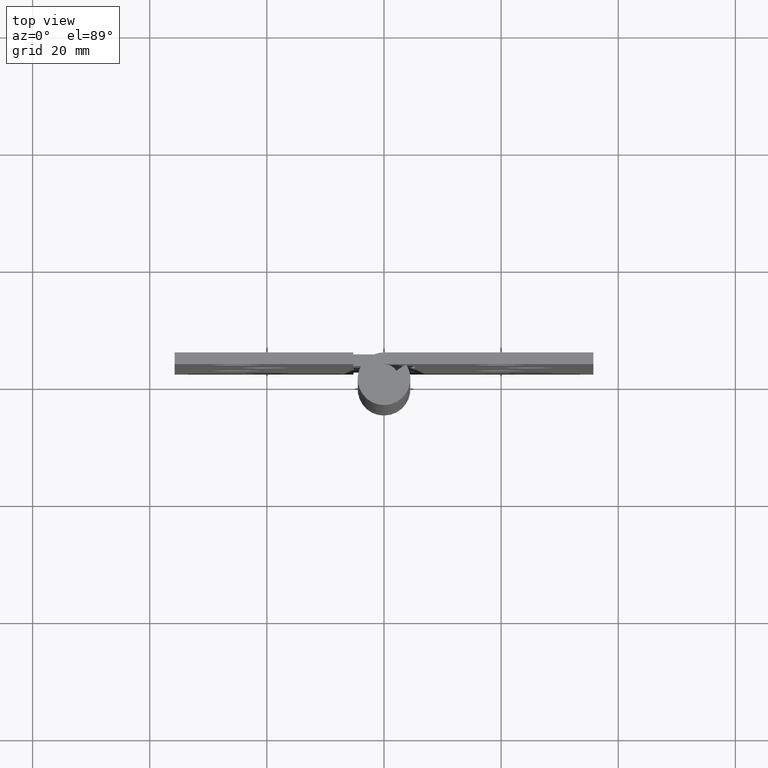
[diagram: clean part render]
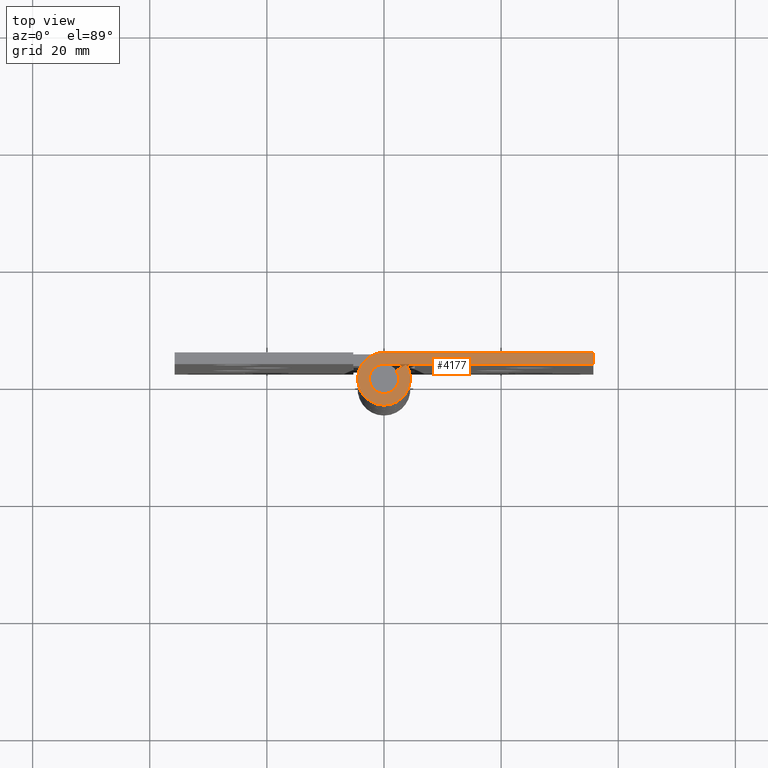
[diagram: same view with one face highlighted and labeled with its STEP entity id]
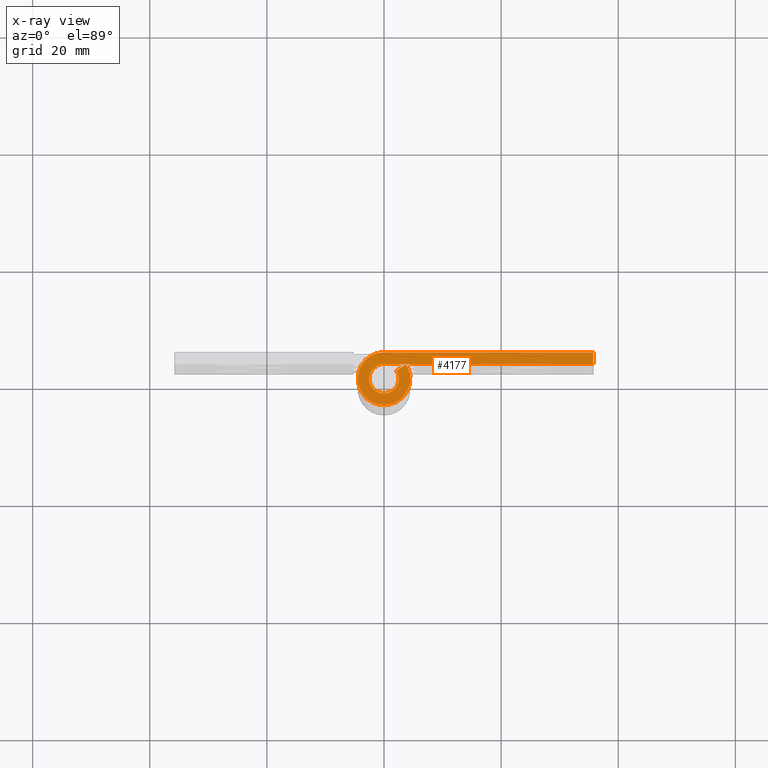
[diagram: x-ray of the same camera — body ghosted, the highlighted face saturated]
A machine part, top view. The second image highlights one B-rep face of the part: STEP entity #4177.
The next image is the same camera in x-ray: the body ghosted, the highlighted face saturated — about 0% of this face is hidden behind the body in this view.
In plain terms, the highlighted face is a freeform B-spline surface patch.
Its self-contained STEP definition (entity closure, byte-faithful):
#4100=CARTESIAN_POINT('',(-6.509910468555789,-4.947240005323052,102.000007999999990));
#4101=CARTESIAN_POINT('',(37.760452673167329,-4.947240005323052,102.000007999999990));
#4102=CARTESIAN_POINT('',(-6.509910468555789,4.949440329750106,102.000007999999990));
#4103=CARTESIAN_POINT('',(37.760452673167329,4.949440329750106,102.000007999999990));
#4104=B_SPLINE_SURFACE_WITH_KNOTS('',1,1,((#4100,#4102),(#4101,#4103)),.UNSPECIFIED.,.F.,.F.,.U.,(2,2),(2,2),(0.0,44.270363141723116),(0.0,9.896680335073157),.UNSPECIFIED.);
#4105=CARTESIAN_POINT('',(3.774586070021450,2.450000000000000,102.000007999999990));
#4106=VERTEX_POINT('',#4105);
#4107=CARTESIAN_POINT('',(0.0,4.500000000000000,102.000007999999990));
#4108=VERTEX_POINT('',#4107);
#4109=CARTESIAN_POINT('',(3.774586070021452,2.450000000000001,102.000007999999990));
#4110=CARTESIAN_POINT('',(5.680028716683057,-0.485615212781099,102.000007999999990));
#4111=CARTESIAN_POINT('',(3.303919729592088,-3.055178296010257,102.000007999999990));
#4112=CARTESIAN_POINT('',(0.927810742501120,-5.624741379239415,102.000007999999990));
#4113=CARTESIAN_POINT('',(-2.147673159491448,-3.954427897939223,102.000007999999990));
#4114=CARTESIAN_POINT('',(-5.223157061484022,-2.284114416639028,102.000007999999990));
#4115=CARTESIAN_POINT('',(-4.361474838900626,1.107942791680489,102.000007999999990));
#4116=CARTESIAN_POINT('',(-3.499792616317231,4.499999999999999,102.000007999999990));
#4117=CARTESIAN_POINT('',(0.0,4.500000000000000,102.000007999999990));
#4125=(BOUNDED_CURVE()B_SPLINE_CURVE(2,(#4109,#4110,#4111,#4112,#4113,#4114,#4115,#4116,#4117),.UNSPECIFIED.,.F.,.U.)B_SPLINE_CURVE_WITH_KNOTS((3,2,2,2,3),(0.0,0.250000000000000,0.500000000000000,0.750000000000000,1.0),.UNSPECIFIED.)CURVE()GEOMETRIC_REPRESENTATION_ITEM()RATIONAL_B_SPLINE_CURVE((1.0,0.789369846542903,1.0,0.789369846542903,1.0,0.789369846542903,1.0,0.789369846542903,1.0))REPRESENTATION_ITEM(''));
#4126=EDGE_CURVE('',#4106,#4108,#4125,.T.);
#4127=ORIENTED_EDGE('',*,*,#4126,.F.);
#4128=CARTESIAN_POINT('',(2.096992261123030,1.361111111111112,102.000007999999990));
#4129=VERTEX_POINT('',#4128);
#4130=CARTESIAN_POINT('',(2.096992261123030,1.361111111111112,102.000007999999990));
#4131=CARTESIAN_POINT('',(3.774586070021450,2.450000000000000,102.000007999999990));
#4132=QUASI_UNIFORM_CURVE('',1,(#4130,#4131),.UNSPECIFIED.,.F.,.U.);
#4133=EDGE_CURVE('',#4129,#4106,#4132,.T.);
#4134=ORIENTED_EDGE('',*,*,#4133,.F.);
#4135=CARTESIAN_POINT('',(0.0,2.500000000000000,102.000007999999990));
#4136=VERTEX_POINT('',#4135);
#4137=CARTESIAN_POINT('',(2.096992261123029,1.361111111111112,102.000007999999990));
#4138=CARTESIAN_POINT('',(3.155571509268364,-0.269786229322833,102.000007999999990));
#4139=CARTESIAN_POINT('',(1.835510960884494,-1.697321275561254,102.000007999999990));
#4140=CARTESIAN_POINT('',(0.515450412500622,-3.124856321799674,102.000007999999990));
#4141=CARTESIAN_POINT('',(-1.193151755273027,-2.196904387744013,102.000007999999990));
#4142=CARTESIAN_POINT('',(-2.901753923046679,-1.268952453688348,102.000007999999990));
#4143=CARTESIAN_POINT('',(-2.423041577167015,0.615523773155827,102.000007999999990));
#4144=CARTESIAN_POINT('',(-1.944329231287350,2.500000000000000,102.000007999999990));
#4145=CARTESIAN_POINT('',(0.0,2.500000000000000,102.000007999999990));
#4153=(BOUNDED_CURVE()B_SPLINE_CURVE(2,(#4137,#4138,#4139,#4140,#4141,#4142,#4143,#4144,#4145),.UNSPECIFIED.,.F.,.U.)B_SPLINE_CURVE_WITH_KNOTS((3,2,2,2,3),(0.0,0.250000000000000,0.500000000000000,0.750000000000000,1.0),.UNSPECIFIED.)CURVE()GEOMETRIC_REPRESENTATION_ITEM()RATIONAL_B_SPLINE_CURVE((1.0,0.789369846542903,1.0,0.789369846542903,1.0,0.789369846542903,1.0,0.789369846542903,1.0))REPRESENTATION_ITEM(''));
#4154=EDGE_CURVE('',#4129,#4136,#4153,.T.);
#4155=ORIENTED_EDGE('',*,*,#4154,.T.);
#4156=CARTESIAN_POINT('',(35.749991999999999,2.500000000000000,102.000007999999990));
#4157=VERTEX_POINT('',#4156);
#4158=CARTESIAN_POINT('',(35.749991999999999,2.500000000000000,102.000007999999990));
#4159=CARTESIAN_POINT('',(0.0,2.500000000000000,102.000007999999990));
#4160=QUASI_UNIFORM_CURVE('',1,(#4158,#4159),.UNSPECIFIED.,.F.,.U.);
#4161=EDGE_CURVE('',#4157,#4136,#4160,.T.);
#4162=ORIENTED_EDGE('',*,*,#4161,.F.);
#4163=CARTESIAN_POINT('',(35.749991999999999,4.500000000000000,102.000007999999990));
#4164=VERTEX_POINT('',#4163);
#4165=CARTESIAN_POINT('',(35.749991999999999,4.500000000000000,102.000007999999990));
#4166=CARTESIAN_POINT('',(35.749991999999999,2.500000000000000,102.000007999999990));
#4167=QUASI_UNIFORM_CURVE('',1,(#4165,#4166),.UNSPECIFIED.,.F.,.U.);
#4168=EDGE_CURVE('',#4164,#4157,#4167,.T.);
#4169=ORIENTED_EDGE('',*,*,#4168,.F.);
#4170=CARTESIAN_POINT('',(0.0,4.500000000000000,102.000007999999990));
#4171=CARTESIAN_POINT('',(35.749991999999999,4.500000000000000,102.000007999999990));
#4172=QUASI_UNIFORM_CURVE('',1,(#4170,#4171),.UNSPECIFIED.,.F.,.U.);
#4173=EDGE_CURVE('',#4108,#4164,#4172,.T.);
#4174=ORIENTED_EDGE('',*,*,#4173,.F.);
#4175=EDGE_LOOP('',(#4127,#4134,#4155,#4162,#4169,#4174));
#4176=FACE_OUTER_BOUND('',#4175,.T.);
#4177=ADVANCED_FACE('',(#4176),#4104,.T.);